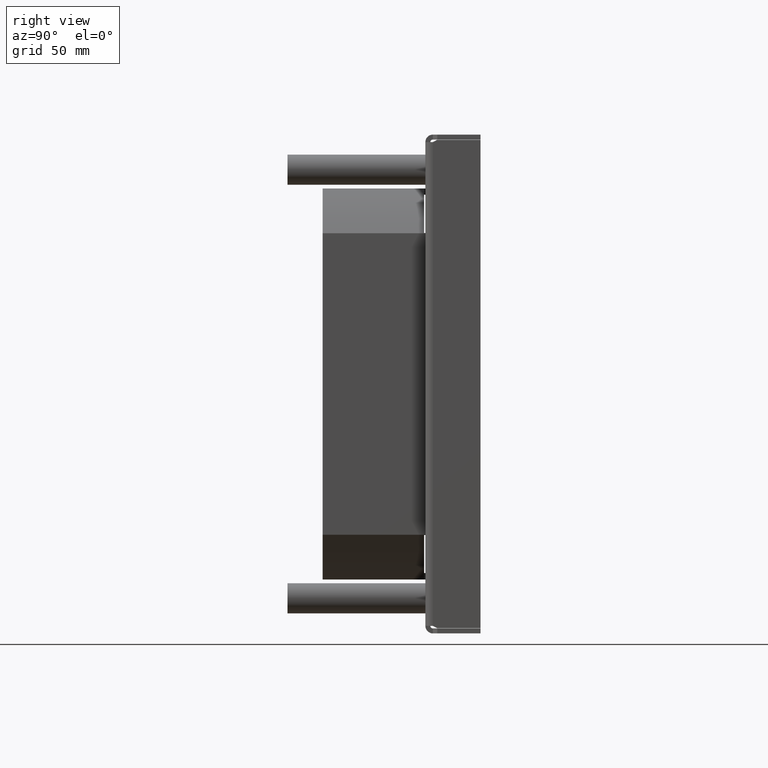
[diagram: clean part render]
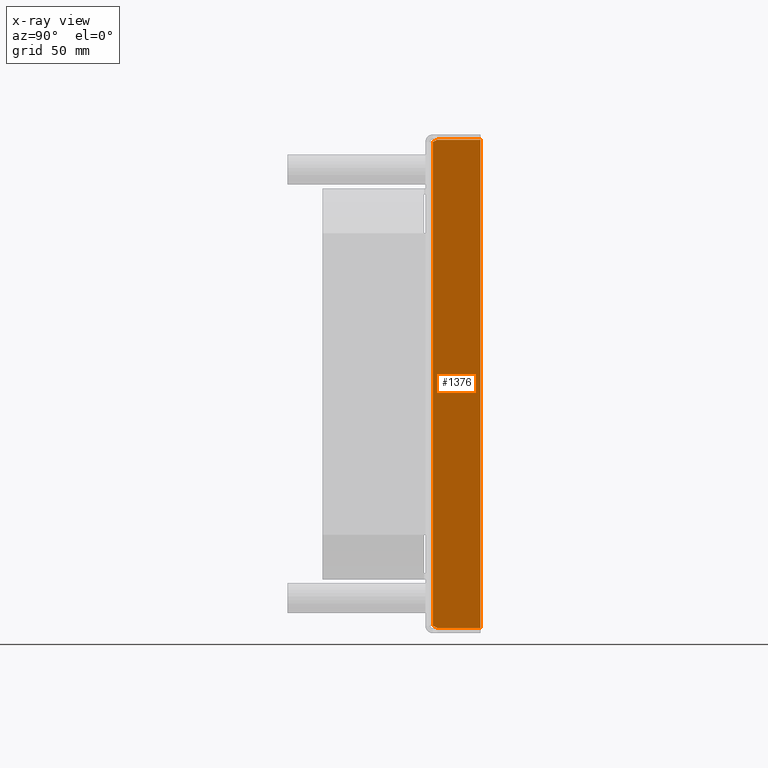
[diagram: x-ray — body ghosted, one internal face saturated and labeled with its STEP entity id]
A machine part, right view, then the same camera in x-ray: the body is ghosted and one INTERNAL B-rep face — a face not visible from any outside direction — is saturated and labeled: STEP entity #1376.
In plain terms, the highlighted planar face has unit normal (-1, 0, 0).
Its self-contained STEP definition (entity closure, byte-faithful):
#341=DIRECTION('',(4.610839676207E-1,8.873565094161E-1,0.E0));
#342=VECTOR('',#341,1.951922129594E0);
#343=CARTESIAN_POINT('',(9.65E1,3.E0,9.75E1));
#344=LINE('',#343,#342);
#348=DIRECTION('',(-1.E0,0.E0,0.E0));
#349=VECTOR('',#348,1.948E2);
#350=CARTESIAN_POINT('',(9.74E1,2.2E1,9.75E1));
#351=LINE('',#350,#349);
#355=DIRECTION('',(0.E0,-1.E0,0.E0));
#356=VECTOR('',#355,1.726794919243E1);
#357=CARTESIAN_POINT('',(-9.74E1,2.2E1,9.75E1));
#358=LINE('',#357,#356);
#362=DIRECTION('',(4.610839676207E-1,-8.873565094161E-1,0.E0));
#363=VECTOR('',#362,1.951922129594E0);
#364=CARTESIAN_POINT('',(-9.74E1,4.732050807569E0,9.75E1));
#365=LINE('',#364,#363);
#376=DIRECTION('',(-1.E0,0.E0,0.E0));
#377=VECTOR('',#376,1.93E2);
#378=CARTESIAN_POINT('',(9.65E1,3.E0,9.75E1));
#379=LINE('',#378,#377);
#717=DIRECTION('',(0.E0,-1.E0,0.E0));
#718=VECTOR('',#717,1.726794919243E1);
#719=CARTESIAN_POINT('',(9.74E1,2.2E1,9.75E1));
#720=LINE('',#719,#718);
#1167=CARTESIAN_POINT('',(9.74E1,2.2E1,9.75E1));
#1168=CARTESIAN_POINT('',(-9.74E1,2.2E1,9.75E1));
#1169=VERTEX_POINT('',#1167);
#1170=VERTEX_POINT('',#1168);
#1171=CARTESIAN_POINT('',(9.65E1,3.E0,9.75E1));
#1172=CARTESIAN_POINT('',(-9.65E1,3.E0,9.75E1));
#1173=VERTEX_POINT('',#1171);
#1174=VERTEX_POINT('',#1172);
#1175=CARTESIAN_POINT('',(9.74E1,4.732050807569E0,9.75E1));
#1176=VERTEX_POINT('',#1175);
#1177=CARTESIAN_POINT('',(-9.74E1,4.732050807569E0,9.75E1));
#1178=VERTEX_POINT('',#1177);
#1358=CARTESIAN_POINT('',(-2.29284E1,0.E0,9.75E1));
#1359=DIRECTION('',(0.E0,0.E0,-1.E0));
#1360=DIRECTION('',(-1.E0,0.E0,0.E0));
#1361=AXIS2_PLACEMENT_3D('',#1358,#1359,#1360);
#1362=PLANE('',#1361);
#1364=ORIENTED_EDGE('',*,*,#1363,.F.);
#1366=ORIENTED_EDGE('',*,*,#1365,.T.);
#1368=ORIENTED_EDGE('',*,*,#1367,.F.);
#1369=ORIENTED_EDGE('',*,*,#1348,.T.);
#1371=ORIENTED_EDGE('',*,*,#1370,.T.);
#1373=ORIENTED_EDGE('',*,*,#1372,.T.);
#1374=EDGE_LOOP('',(#1364,#1366,#1368,#1369,#1371,#1373));
#1375=FACE_OUTER_BOUND('',#1374,.F.);
#1348=EDGE_CURVE('',#1169,#1170,#351,.T.);
#1363=EDGE_CURVE('',#1173,#1174,#379,.T.);
#1365=EDGE_CURVE('',#1173,#1176,#344,.T.);
#1367=EDGE_CURVE('',#1169,#1176,#720,.T.);
#1370=EDGE_CURVE('',#1170,#1178,#358,.T.);
#1372=EDGE_CURVE('',#1178,#1174,#365,.T.);
#1376=ADVANCED_FACE('',(#1375),#1362,.T.);